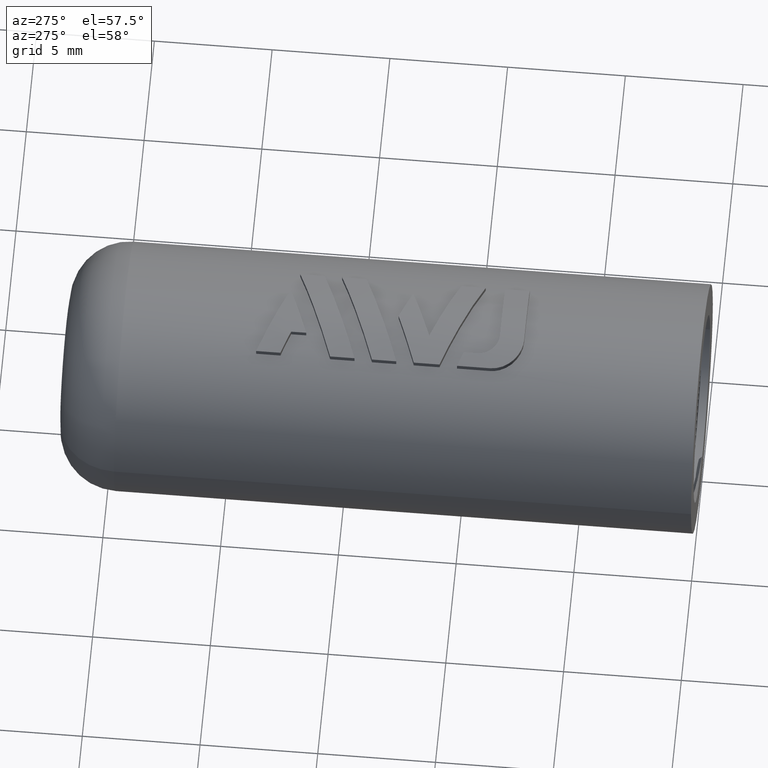
[diagram: clean part render]
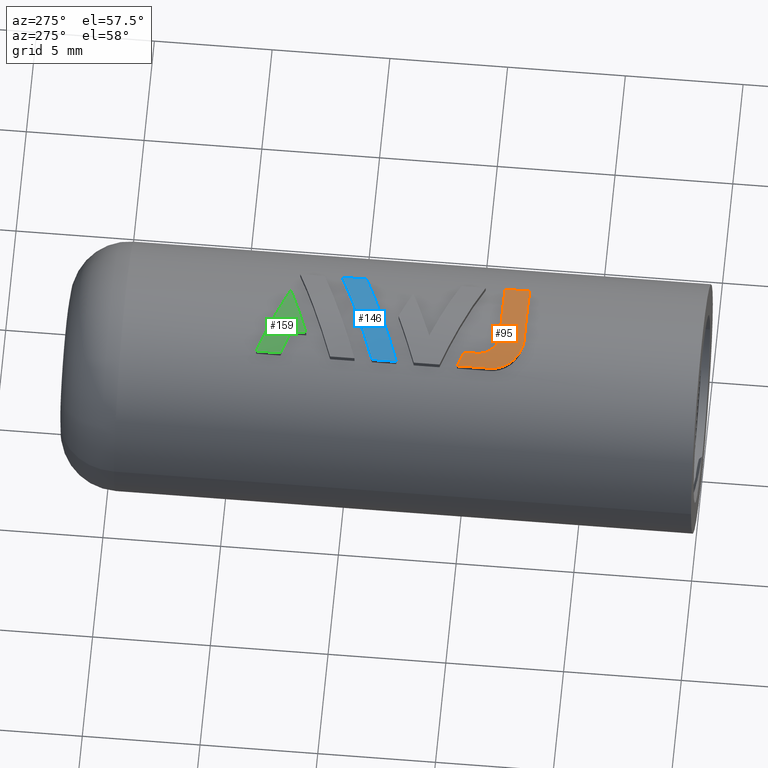
[diagram: same view with three faces highlighted in distinct colors, each labeled with its STEP entity id]
A machine part, auxiliary view with three faces highlighted in distinct colors.
Their STEP definitions:

[orange] entity #95 — the highlighted cylindrical surface (partial cylindrical patch) has radius 5.5 mm, axis along (-0, 1, 0).
#95=ADVANCED_FACE('',(#191),#192,.T.);
#191=FACE_OUTER_BOUND('',#2022,.T.);
#192=CYLINDRICAL_SURFACE('',#2023,5.5);
#2022=EDGE_LOOP('',(#2242,#2243,#2244,#2245,#2246,#2247,#2248,#2249,#2250,#2251,#2252,#2253,#2254,#2255,#2256,#2257,#2258,#2259,#2260,#2261,#2262,#2263,#2264,#2265,#2266,#2267,#2268,#2269,#2270,#2271,#2272,#2273,#2274,#2275,#2276,#2277,#2278,#2279,#2280,#2281));
#2023=AXIS2_PLACEMENT_3D('',#2282,#2283,#2284);
#2242=ORIENTED_EDGE('',*,*,#2877,.T.);
#2243=ORIENTED_EDGE('',*,*,#2878,.T.);
#2244=ORIENTED_EDGE('',*,*,#2879,.T.);
#2245=ORIENTED_EDGE('',*,*,#2880,.T.);
#2246=ORIENTED_EDGE('',*,*,#2881,.T.);
#2247=ORIENTED_EDGE('',*,*,#2882,.T.);
#2248=ORIENTED_EDGE('',*,*,#2883,.T.);
#2249=ORIENTED_EDGE('',*,*,#2884,.T.);
#2250=ORIENTED_EDGE('',*,*,#2885,.T.);
#2251=ORIENTED_EDGE('',*,*,#2886,.T.);
#2252=ORIENTED_EDGE('',*,*,#2887,.T.);
#2253=ORIENTED_EDGE('',*,*,#2888,.T.);
#2254=ORIENTED_EDGE('',*,*,#2889,.T.);
#2255=ORIENTED_EDGE('',*,*,#2890,.T.);
#2256=ORIENTED_EDGE('',*,*,#2891,.T.);
#2257=ORIENTED_EDGE('',*,*,#2892,.T.);
#2258=ORIENTED_EDGE('',*,*,#2893,.T.);
#2259=ORIENTED_EDGE('',*,*,#2894,.T.);
#2260=ORIENTED_EDGE('',*,*,#2895,.T.);
#2261=ORIENTED_EDGE('',*,*,#2896,.T.);
#2262=ORIENTED_EDGE('',*,*,#2897,.T.);
#2263=ORIENTED_EDGE('',*,*,#2898,.T.);
#2264=ORIENTED_EDGE('',*,*,#2899,.T.);
#2265=ORIENTED_EDGE('',*,*,#2900,.T.);
#2266=ORIENTED_EDGE('',*,*,#2901,.T.);
#2267=ORIENTED_EDGE('',*,*,#2902,.T.);
#2268=ORIENTED_EDGE('',*,*,#2903,.T.);
#2269=ORIENTED_EDGE('',*,*,#2904,.T.);
#2270=ORIENTED_EDGE('',*,*,#2905,.T.);
#2271=ORIENTED_EDGE('',*,*,#2906,.T.);
#2272=ORIENTED_EDGE('',*,*,#2907,.T.);
#2273=ORIENTED_EDGE('',*,*,#2908,.T.);
#2274=ORIENTED_EDGE('',*,*,#2909,.T.);
#2275=ORIENTED_EDGE('',*,*,#2910,.T.);
#2276=ORIENTED_EDGE('',*,*,#2911,.T.);
#2277=ORIENTED_EDGE('',*,*,#2912,.T.);
#2278=ORIENTED_EDGE('',*,*,#2913,.T.);
#2279=ORIENTED_EDGE('',*,*,#2914,.T.);
#2280=ORIENTED_EDGE('',*,*,#2915,.T.);
#2281=ORIENTED_EDGE('',*,*,#2916,.T.);
#2282=CARTESIAN_POINT('',(1.7347234759768E-15,23.5231745793484,-1.06221177613038E-31));
#2283=DIRECTION('',(-0.0,1.0,0.0));
#2284=DIRECTION('',(1.0,0.0,-6.12323399573677E-17));
#2877=EDGE_CURVE('',#3110,#3111,#3112,.T.);
#2878=EDGE_CURVE('',#3111,#3113,#3114,.T.);
#2879=EDGE_CURVE('',#3113,#3115,#3116,.T.);
#2880=EDGE_CURVE('',#3115,#3117,#3118,.T.);
#2881=EDGE_CURVE('',#3117,#3119,#3120,.T.);
#2882=EDGE_CURVE('',#3119,#3121,#3122,.T.);
#2883=EDGE_CURVE('',#3121,#3123,#3124,.T.);
#2884=EDGE_CURVE('',#3123,#3125,#3126,.T.);
#2885=EDGE_CURVE('',#3125,#3127,#3128,.T.);
#2886=EDGE_CURVE('',#3127,#3129,#3130,.T.);
#2887=EDGE_CURVE('',#3129,#3131,#3132,.T.);
#2888=EDGE_CURVE('',#3131,#3133,#3134,.T.);
#2889=EDGE_CURVE('',#3133,#3135,#3136,.T.);
#2890=EDGE_CURVE('',#3135,#3137,#3138,.T.);
#2891=EDGE_CURVE('',#3137,#3139,#3140,.T.);
#2892=EDGE_CURVE('',#3139,#3141,#3142,.T.);
#2893=EDGE_CURVE('',#3141,#3143,#3144,.T.);
#2894=EDGE_CURVE('',#3143,#3145,#3146,.T.);
#2895=EDGE_CURVE('',#3145,#3147,#3148,.T.);
#2896=EDGE_CURVE('',#3147,#3149,#3150,.F.);
#2897=EDGE_CURVE('',#3149,#3151,#3152,.T.);
#2898=EDGE_CURVE('',#3151,#3153,#3154,.T.);
#2899=EDGE_CURVE('',#3153,#3155,#3156,.T.);
#2900=EDGE_CURVE('',#3155,#3157,#3158,.T.);
#2901=EDGE_CURVE('',#3157,#3159,#3160,.F.);
#2902=EDGE_CURVE('',#3159,#3161,#3162,.T.);
#2903=EDGE_CURVE('',#3161,#3163,#3164,.T.);
#2904=EDGE_CURVE('',#3163,#3165,#3166,.T.);
#2905=EDGE_CURVE('',#3165,#3167,#3168,.T.);
#2906=EDGE_CURVE('',#3167,#3169,#3170,.T.);
#2907=EDGE_CURVE('',#3169,#3171,#3172,.T.);
#2908=EDGE_CURVE('',#3171,#3173,#3174,.T.);
#2909=EDGE_CURVE('',#3173,#3175,#3176,.T.);
#2910=EDGE_CURVE('',#3175,#3177,#3178,.T.);
#2911=EDGE_CURVE('',#3177,#3179,#3180,.T.);
#2912=EDGE_CURVE('',#3179,#3181,#3182,.T.);
#2913=EDGE_CURVE('',#3181,#3183,#3184,.T.);
#2914=EDGE_CURVE('',#3183,#3185,#3186,.T.);
#2915=EDGE_CURVE('',#3185,#3187,#3188,.T.);
#2916=EDGE_CURVE('',#3187,#3110,#3189,.T.);
#3110=VERTEX_POINT('',#4318);
#3111=VERTEX_POINT('',#4319);
#3112=ELLIPSE('',#4320,7.19115446070758,5.5);
#3113=VERTEX_POINT('',#4321);
#3114=ELLIPSE('',#4322,7.51049630201336,5.5);
#3115=VERTEX_POINT('',#4323);
#3116=ELLIPSE('',#4324,7.87524097586556,5.49999999999999);
#3117=VERTEX_POINT('',#4325);
#3118=ELLIPSE('',#4326,8.29590120246717,5.50000000000001);
#3119=VERTEX_POINT('',#4327);
#3120=ELLIPSE('',#4328,8.78584519329315,5.5);
#3121=VERTEX_POINT('',#4329);
#3122=ELLIPSE('',#4330,9.36479649305771,5.5);
#3123=VERTEX_POINT('',#4331);
#3124=ELLIPSE('',#4332,10.0594650290428,5.5);
#3125=VERTEX_POINT('',#4333);
#3126=ELLIPSE('',#4334,10.9033213169632,5.5);
#3127=VERTEX_POINT('',#4335);
#3128=ELLIPSE('',#4336,11.9207143944446,5.5);
#3129=VERTEX_POINT('',#4337);
#3130=ELLIPSE('',#4338,13.1666949154372,5.50000000000001);
#3131=VERTEX_POINT('',#4339);
#3132=ELLIPSE('',#4340,14.7336941101396,5.5);
#3133=VERTEX_POINT('',#4341);
#3134=ELLIPSE('',#4342,16.7706381363553,5.50000000000001);
#3135=VERTEX_POINT('',#4343);
#3136=ELLIPSE('',#4344,19.5385984133284,5.50000000000001);
#3137=VERTEX_POINT('',#4345);
#3138=ELLIPSE('',#4346,23.5295682769123,5.5);
#3139=VERTEX_POINT('',#4347);
#3140=ELLIPSE('',#4348,29.1727695141111,5.5);
#3141=VERTEX_POINT('',#4349);
#3142=ELLIPSE('',#4350,37.4272935568796,5.5);
#3143=VERTEX_POINT('',#4351);
#3144=ELLIPSE('',#4352,52.2311187882268,5.49999999999999);
#3145=VERTEX_POINT('',#4353);
#3146=ELLIPSE('',#4354,86.6979704067254,5.5);
#3147=VERTEX_POINT('',#4355);
#3148=ELLIPSE('',#4356,258.797847221049,5.5);
#3149=VERTEX_POINT('',#4357);
#3150=LINE('',#4358,#4359);
#3151=VERTEX_POINT('',#4360);
#3152=ELLIPSE('',#4361,5.93193926590106,5.5);
#3153=VERTEX_POINT('',#4362);
#3154=B_SPLINE_CURVE_WITH_KNOTS('',3,(#4363,#4364,#4365,#4366),.UNSPECIFIED.,.F.,.F.,(4,4),(0.00567640624225707,0.00707972990579237),.UNSPECIFIED.);
#3155=VERTEX_POINT('',#4367);
#3156=B_SPLINE_CURVE_WITH_KNOTS('',3,(#4368,#4369,#4370,#4371,#4372,#4373,#4374,#4375,#4376,#4377,#4378,#4379),.UNSPECIFIED.,.F.,.F.,(4,2,2,2,2,4),(0.0,0.000264322943552854,0.000528645887105708,0.00105729177421142,0.00158593766131713,0.00211458354842284),.UNSPECIFIED.);
#3157=VERTEX_POINT('',#4380);
#3158=CIRCLE('',#4381,5.5);
#3159=VERTEX_POINT('',#4382);
#3160=LINE('',#4383,#4384);
#3161=VERTEX_POINT('',#4385);
#3162=CIRCLE('',#4386,5.5);
#3163=VERTEX_POINT('',#4387);
#3164=ELLIPSE('',#4388,5.50167455048243,5.5);
#3165=VERTEX_POINT('',#4389);
#3166=ELLIPSE('',#4390,5.51488255044797,5.5);
#3167=VERTEX_POINT('',#4391);
#3168=ELLIPSE('',#4392,5.54097233893021,5.5);
#3169=VERTEX_POINT('',#4393);
#3170=ELLIPSE('',#4394,5.58001678511402,5.5);
#3171=VERTEX_POINT('',#4395);
#3172=ELLIPSE('',#4396,5.63257191887835,5.5);
#3173=VERTEX_POINT('',#4397);
#3174=ELLIPSE('',#4398,5.69967575837449,5.5);
#3175=VERTEX_POINT('',#4399);
#3176=ELLIPSE('',#4400,5.78280067695114,5.50000000000001);
#3177=VERTEX_POINT('',#4401);
#3178=ELLIPSE('',#4402,5.88348415254288,5.5);
#3179=VERTEX_POINT('',#4403);
#3180=ELLIPSE('',#4404,6.00087318082815,5.5);
#3181=VERTEX_POINT('',#4405);
#3182=ELLIPSE('',#4406,6.1361966087212,5.5);
#3183=VERTEX_POINT('',#4407);
#3184=ELLIPSE('',#4408,6.2914357675483,5.5);
#3185=VERTEX_POINT('',#4409);
#3186=ELLIPSE('',#4410,6.46979696450778,5.5);
#3187=VERTEX_POINT('',#4411);
#3188=ELLIPSE('',#4412,6.67532786888118,5.5);
#3189=ELLIPSE('',#4413,6.91301455758095,5.5);
#4318=CARTESIAN_POINT('',(-1.08592408240199,8.72700103611199,5.39173152959784));
#4319=CARTESIAN_POINT('',(-1.11899010313799,8.75485336064598,5.38496621615023));
#4320=AXIS2_PLACEMENT_3D('',#4779,#4780,#4781);
#4321=CARTESIAN_POINT('',(-1.150754256018,8.78439082151,5.378267810574));
#4322=AXIS2_PLACEMENT_3D('',#4782,#4783,#4784);
#4323=CARTESIAN_POINT('',(-1.18111694459399,8.81550670822399,5.37168155824533));
#4324=AXIS2_PLACEMENT_3D('',#4785,#4786,#4787);
#4325=CARTESIAN_POINT('',(-1.20997501540199,8.84809342105399,5.36525492983352));
#4326=AXIS2_PLACEMENT_3D('',#4788,#4789,#4790);
#4327=CARTESIAN_POINT('',(-1.23722798273999,8.88204247101199,5.35903600647776));
#4328=AXIS2_PLACEMENT_3D('',#4791,#4792,#4793);
#4329=CARTESIAN_POINT('',(-1.26277447165198,8.91724803687198,5.353073942488));
#4330=AXIS2_PLACEMENT_3D('',#4794,#4795,#4796);
#4331=CARTESIAN_POINT('',(-1.28651310718199,8.95360162964599,5.34741844491797));
#4332=AXIS2_PLACEMENT_3D('',#4797,#4798,#4799);
#4333=CARTESIAN_POINT('',(-1.30832828631,8.990943183614,5.34212290154777));
#4334=AXIS2_PLACEMENT_3D('',#4800,#4801,#4802);
#4335=CARTESIAN_POINT('',(-1.32836851445399,9.02947900570399,5.33717501022847));
#4336=AXIS2_PLACEMENT_3D('',#4803,#4804,#4805);
#4337=CARTESIAN_POINT('',(-1.34656709756399,9.06906236900599,5.3326125915688));
#4338=AXIS2_PLACEMENT_3D('',#4806,#4807,#4808);
#4339=CARTESIAN_POINT('',(-1.36285823084399,9.10954921437199,5.32847233666656));
#4340=AXIS2_PLACEMENT_3D('',#4809,#4810,#4811);
#4341=CARTESIAN_POINT('',(-1.37717610949799,9.15079281489197,5.32478975767382));
#4342=AXIS2_PLACEMENT_3D('',#4812,#4813,#4814);
#4343=CARTESIAN_POINT('',(-1.38945492872999,9.19264911141799,5.32159891395696));
#4344=AXIS2_PLACEMENT_3D('',#4815,#4816,#4817);
#4345=CARTESIAN_POINT('',(-1.399629772998,9.23497226629399,5.31893189451957));
#4346=AXIS2_PLACEMENT_3D('',#4818,#4819,#4820);
#4347=CARTESIAN_POINT('',(-1.40668778199599,9.27173758366997,5.31706963317043));
#4348=AXIS2_PLACEMENT_3D('',#4821,#4822,#4823);
#4349=CARTESIAN_POINT('',(-1.41220026754199,9.30884259607399,5.31560818762579));
#4350=AXIS2_PLACEMENT_3D('',#4824,#4825,#4826);
#4351=CARTESIAN_POINT('',(-1.41615389082599,9.34617970377205,5.3145562521718));
#4352=AXIS2_PLACEMENT_3D('',#4827,#4828,#4829);
#4353=CARTESIAN_POINT('',(-1.41853531303798,9.38364308553787,5.31392111022211));
#4354=AXIS2_PLACEMENT_3D('',#4830,#4831,#4832);
#4355=CARTESIAN_POINT('',(-1.41933208462199,9.42112603089206,5.31370835044252));
#4356=AXIS2_PLACEMENT_3D('',#4833,#4834,#4835);
#4357=CARTESIAN_POINT('',(-1.41933208462199,9.98911301353399,5.31370835044252));
#4358=CARTESIAN_POINT('',(-1.41933208462199,23.5231745793484,5.31370835044252));
#4359=VECTOR('',#4836,1000.0);
#4360=CARTESIAN_POINT('',(-2.0008215,10.224049474064,5.12315462631548));
#4361=AXIS2_PLACEMENT_3D('',#4837,#4838,#4839);
#4362=CARTESIAN_POINT('',(-2.0008214918406,8.82072581052868,5.12315462950209));
#4363=CARTESIAN_POINT('',(-2.0008215,10.224049474064,5.12315462631548));
#4364=CARTESIAN_POINT('',(-2.0008214972802,9.75627491955222,5.12315462737769));
#4365=CARTESIAN_POINT('',(-2.0008214945604,9.28850036504045,5.12315462843989));
#4366=CARTESIAN_POINT('',(-2.00082149184061,8.82072581052868,5.12315462950209));
#4367=CARTESIAN_POINT('',(-0.6669405,7.48684473994999,5.45941300594301));
#4368=CARTESIAN_POINT('',(-2.0008214918406,8.82072581052868,5.12315462950209));
#4369=CARTESIAN_POINT('',(-2.00081160307552,8.73129299715089,5.12315849150805));
#4370=CARTESIAN_POINT('',(-1.99177395962376,8.64355009644077,5.12671268375382));
#4371=CARTESIAN_POINT('',(-1.95702906720631,8.47116597637719,5.1400762327136));
#4372=CARTESIAN_POINT('',(-1.93085321933508,8.38560434887119,5.15005921695318));
#4373=CARTESIAN_POINT('',(-1.82916419572794,8.14319940970248,5.18742467087774));
#4374=CARTESIAN_POINT('',(-1.72942025281554,7.99616373276001,5.22258912847413));
#4375=CARTESIAN_POINT('',(-1.48498596960788,7.75321831978701,5.29727744089098));
#4376=CARTESIAN_POINT('',(-1.33791534668604,7.65509622973159,5.33728648761208));
#4377=CARTESIAN_POINT('',(-1.01903447232677,7.52265867491175,5.40723711981953));
#4378=CARTESIAN_POINT('',(-0.844271619590071,7.48686435827438,5.43774963198025));
#4379=CARTESIAN_POINT('',(-0.6669405,7.48684473994999,5.45941300594302));
#4380=CARTESIAN_POINT('',(1.99789407583201,7.48684473994999,5.1242969529249));
#4381=AXIS2_PLACEMENT_3D('',#4840,#4841,#4842);
#4382=CARTESIAN_POINT('',(1.997894075832,8.53187203089199,5.1242969529249));
#4383=CARTESIAN_POINT('',(1.99789407583201,23.5231745793484,5.1242969529249));
#4384=VECTOR('',#4843,1000.0);
#4385=CARTESIAN_POINT('',(-0.53007808462199,8.53187203089199,5.47439651689604));
#4386=AXIS2_PLACEMENT_3D('',#4844,#4845,#4846);
#4387=CARTESIAN_POINT('',(-0.573066401489996,8.53293291091399,5.47006351877959));
#4388=AXIS2_PLACEMENT_3D('',#4847,#4848,#4849);
#4389=CARTESIAN_POINT('',(-0.616034265515994,8.53609598739199,5.46539127453014));
#4390=AXIS2_PLACEMENT_3D('',#4850,#4851,#4852);
#4391=CARTESIAN_POINT('',(-0.658835839043985,8.54133013643599,5.46039699446764));
#4392=AXIS2_PLACEMENT_3D('',#4853,#4854,#4855);
#4393=CARTESIAN_POINT('',(-0.701325284417986,8.54860423415599,5.45510245966435));
#4394=AXIS2_PLACEMENT_3D('',#4856,#4857,#4858);
#4395=CARTESIAN_POINT('',(-0.743355874727997,8.557888045916,5.44953411251892));
#4396=AXIS2_PLACEMENT_3D('',#4859,#4860,#4861);
#4397=CARTESIAN_POINT('',(-0.78478088306398,8.56915133707999,5.44372289573756));
#4398=AXIS2_PLACEMENT_3D('',#4862,#4863,#4864);
#4399=CARTESIAN_POINT('',(-0.82545447176999,8.58236120524998,5.43770401134844));
#4400=AXIS2_PLACEMENT_3D('',#4865,#4866,#4867);
#4401=CARTESIAN_POINT('',(-0.865368637559993,8.597523875204,5.43149492507611));
#4402=AXIS2_PLACEMENT_3D('',#4868,#4869,#4870);
#4403=CARTESIAN_POINT('',(-0.904583849705984,8.61463667917999,5.42510166345766));
#4404=AXIS2_PLACEMENT_3D('',#4871,#4872,#4873);
#4405=CARTESIAN_POINT('',(-0.942978280409987,8.63363025536598,5.41855995285418));
#4406=AXIS2_PLACEMENT_3D('',#4874,#4875,#4876);
#4407=CARTESIAN_POINT('',(-0.980430991127987,8.65443257418799,5.41190863481968));
#4408=AXIS2_PLACEMENT_3D('',#4877,#4878,#4879);
#4409=CARTESIAN_POINT('',(-1.01682104331598,8.67697516308798,5.40518963273906));
#4410=AXIS2_PLACEMENT_3D('',#4880,#4881,#4882);
#4411=CARTESIAN_POINT('',(-1.05202571992199,8.70118866025399,5.39844809965073));
#4412=AXIS2_PLACEMENT_3D('',#4883,#4884,#4885);
#4413=AXIS2_PLACEMENT_3D('',#4886,#4887,#4888);
#4779=CARTESIAN_POINT('',(1.7347234759768E-15,7.81230040721499,-1.06221177613038E-31));
#4780=DIRECTION('',(-0.644233917102622,-0.764828516763472,1.84889274661174E-32));
#4781=DIRECTION('',(0.764828516763472,-0.644233917102622,1.23259516440783E-32));
#4782=CARTESIAN_POINT('',(1.7347234759768E-15,7.7143053408859,-1.06221177613038E-31));
#4783=DIRECTION('',(-0.680973065297779,-0.732308462561336,3.69778549322349E-32));
#4784=DIRECTION('',(0.732308462561336,-0.680973065297779,1.84889274661174E-32));
#4785=CARTESIAN_POINT('',(1.7347234759768E-15,7.60509014870298,-1.06221177613038E-31));
#4786=DIRECTION('',(-0.71571611242667,-0.698391327561313,-1.84889274661175E-32));
#4787=DIRECTION('',(0.698391327561313,-0.71571611242667,1.23259516440783E-32));
#4788=CARTESIAN_POINT('',(1.7347234759768E-15,7.48178211699245,-1.06221177613038E-31));
#4789=DIRECTION('',(-0.748638877900146,-0.662978001517705,6.16297582203916E-32));
#4790=DIRECTION('',(0.662978001517705,-0.748638877900146,-3.08148791101958E-32));
#4791=CARTESIAN_POINT('',(1.7347234759768E-15,7.34082627702648,-1.06221177613038E-31));
#4792=DIRECTION('',(-0.779817491661596,-0.626006932628239,-3.08148791101958E-32));
#4793=DIRECTION('',(0.626006932628239,-0.779817491661596,1.23259516440783E-32));
#4794=CARTESIAN_POINT('',(1.7347234759768E-15,7.17702103420189,-1.06221177613038E-31));
#4795=DIRECTION('',(-0.809365065349925,-0.587305875154601,6.16297582203916E-33));
#4796=DIRECTION('',(0.587305875154601,-0.809365065349925,4.31408307542741E-32));
#4797=CARTESIAN_POINT('',(1.7347234759768E-15,6.98342210783664,-1.06221177613038E-31));
#4798=DIRECTION('',(-0.837296719685789,-0.546748756929009,1.23259516440783E-32));
#4799=DIRECTION('',(0.546748756929009,-0.837296719685789,-6.16297582203916E-33));
#4800=CARTESIAN_POINT('',(1.7347234759768E-15,6.75144695832792,-1.06221177613038E-31));
#4801=DIRECTION('',(-0.863450573828862,-0.504433451066252,-3.08148791101958E-32));
#4802=DIRECTION('',(0.504433451066252,-0.863450573828862,-3.08148791101958E-32));
#4803=CARTESIAN_POINT('',(1.7347234759768E-15,6.47512820814103,-1.06221177613038E-31));
#4804=DIRECTION('',(-0.887201716676643,-0.461381744248748,-6.16297582203916E-33));
#4805=DIRECTION('',(0.461381744248748,-0.887201716676643,-1.84889274661175E-32));
#4806=CARTESIAN_POINT('',(1.7347234759768E-15,6.14017200917855,-1.06221177613038E-31));
#4807=DIRECTION('',(-0.908575523171429,-0.41772062277767,2.46519032881566E-32));
#4808=DIRECTION('',(0.41772062277767,-0.908575523171429,-6.16297582203916E-33));
#4809=CARTESIAN_POINT('',(1.7347234759768E-15,5.72256382179055,-1.06221177613038E-31));
#4810=DIRECTION('',(-0.927713085904695,-0.3732940265276,2.46519032881566E-32));
#4811=DIRECTION('',(0.3732940265276,-0.927713085904695,-2.77333911991762E-32));
#4812=CARTESIAN_POINT('',(1.7347234759768E-15,5.18374555332453,-1.06221177613038E-31));
#4813=DIRECTION('',(-0.944693648842253,-0.32795412764152,4.93038065763132E-32));
#4814=DIRECTION('',(0.32795412764152,-0.944693648842253,2.1570415377137E-32));
#4815=CARTESIAN_POINT('',(1.7347234759768E-15,4.45624600884063,-1.06221177613038E-31));
#4816=DIRECTION('',(-0.959562961313936,-0.281494091011571,7.39557098644699E-32));
#4817=DIRECTION('',(0.281494091011571,-0.959562961313936,-6.16297582203915E-33));
#4818=CARTESIAN_POINT('',(1.7347234759768E-15,3.4130897793126,-1.06221177613038E-31));
#4819=DIRECTION('',(-0.972297107053994,-0.233748445159392,-2.46519032881566E-32));
#4820=DIRECTION('',(0.233748445159392,-0.972297107053994,-1.54074395550979E-32));
#4821=CARTESIAN_POINT('',(1.7347234759768E-15,1.9442713295609,-1.06221177613038E-31));
#4822=DIRECTION('',(-0.982067050918069,-0.188531980048709,1.23259516440783E-32));
#4823=DIRECTION('',(0.188531980048709,-0.982067050918069,3.08148791101958E-33));
#4824=CARTESIAN_POINT('',(1.7347234759768E-15,-0.196798372385399,-1.06221177613038E-31));
#4825=DIRECTION('',(-0.989143686495174,-0.146951582049112,1.23259516440783E-32));
#4826=DIRECTION('',(0.146951582049112,-0.989143686495174,-1.54074395550979E-33));
#4827=CARTESIAN_POINT('',(1.7347234759768E-15,-4.02765147351932,-1.06221177613038E-31));
#4828=DIRECTION('',(-0.994440372875624,-0.1053012098458,-2.46519032881566E-32));
#4829=DIRECTION('',(0.1053012098458,-0.994440372875624,8.47409175530384E-33));
#4830=CARTESIAN_POINT('',(1.7347234759768E-15,-12.9320679685429,-1.06221177613038E-31));
#4831=DIRECTION('',(-0.997985741835146,-0.0634386246205984,1.23259516440783E-32));
#4832=DIRECTION('',(0.0634386246205984,-0.997985741835146,-4.62223186652937E-33));
#4833=CARTESIAN_POINT('',(1.7347234759768E-15,-57.3492609098432,-1.06221177613038E-31));
#4834=DIRECTION('',(-0.999774148431832,-0.0212521087754731,-9.61407134256663E-52));
#4835=DIRECTION('',(0.0212521087754731,-0.999774148431832,-3.85185988877447E-34));
#4836=DIRECTION('',(0.0,-1.0,0.0));
#4837=CARTESIAN_POINT('',(1.7347234759768E-15,9.41566688113795,-1.06221177613038E-31));
#4838=DIRECTION('',(-0.374605889774888,-0.927184138855904,-9.24446373305873E-33));
#4839=DIRECTION('',(0.927184138855904,-0.374605889774888,9.86076131526265E-32));
#4840=CARTESIAN_POINT('',(1.7347234759768E-15,7.48684473994999,-1.06221177613038E-31));
#4841=DIRECTION('',(3.77373430684139E-49,1.0,6.16297582203916E-33));
#4842=DIRECTION('',(-6.12323399573677E-17,6.16297582203916E-33,-1.0));
#4843=DIRECTION('',(0.0,-1.0,0.0));
#4844=CARTESIAN_POINT('',(1.7347234759768E-15,8.53187203089199,-1.06221177613038E-31));
#4845=DIRECTION('',(-3.77373430684139E-49,-1.0,-6.16297582203916E-33));
#4846=DIRECTION('',(6.12323399573677E-17,-6.16297582203916E-33,1.0));
#4847=CARTESIAN_POINT('',(1.7347234759768E-15,8.51879058711738,-1.06221177613038E-31));
#4848=DIRECTION('',(-0.0246708221697221,-0.999695628945866,1.54074395550979E-33));
#4849=DIRECTION('',(0.999695628945866,-0.0246708221697221,-6.16297582203916E-32));
#4850=CARTESIAN_POINT('',(1.7347234759768E-15,8.49074666554258,-1.06221177613038E-31));
#4851=DIRECTION('',(-0.0734162756428558,-0.99730138397113,3.08148791101958E-33));
#4852=DIRECTION('',(0.99730138397113,-0.0734162756428558,-4.93038065763132E-32));
#4853=CARTESIAN_POINT('',(1.7347234759768E-15,8.46076195417447,-1.06221177613038E-31));
#4854=DIRECTION('',(-0.121384450630644,-0.992605568765911,-1.4369180363553E-48));
#4855=DIRECTION('',(0.99260556876591,-0.121384450630644,-4.93038065763132E-32));
#4856=CARTESIAN_POINT('',(1.7347234759768E-15,8.42853891893582,-1.06221177613038E-31));
#4857=DIRECTION('',(-0.168742800716709,-0.98566011748791,9.24446373305873E-33));
#4858=DIRECTION('',(0.98566011748791,-0.168742800716709,3.6977854932235E-32));
#4859=CARTESIAN_POINT('',(1.7347234759768E-15,8.39369392061884,-1.06221177613038E-31));
#4860=DIRECTION('',(-0.215683429399358,-0.976463342006515,-3.08148791101958E-33));
#4861=DIRECTION('',(0.976463342006515,-0.215683429399358,1.33250703304094E-48));
#4862=CARTESIAN_POINT('',(1.7347234759768E-15,8.3557726090857,-1.06221177613038E-31));
#4863=DIRECTION('',(-0.262370646687066,-0.964967172372724,-6.16297582203916E-33));
#4864=DIRECTION('',(0.964967172372724,-0.262370646687066,6.16297582203916E-32));
#4865=CARTESIAN_POINT('',(1.7347234759768E-15,8.31427213075913,-1.06221177613038E-31));
#4866=DIRECTION('',(-0.308894700261037,-0.951096243369011,6.16297582203916E-33));
#4867=DIRECTION('',(0.951096243369011,-0.308894700261037,2.46519032881566E-32));
#4868=CARTESIAN_POINT('',(1.7347234759768E-15,8.26878597525888,-1.06221177613038E-31));
#4869=DIRECTION('',(-0.355121303699923,-0.93482022852443,-6.16297582203916E-33));
#4870=DIRECTION('',(0.93482022852443,-0.355121303699923,-2.46519032881566E-32));
#4871=CARTESIAN_POINT('',(1.7347234759768E-15,8.21989277106991,-1.06221177613038E-31));
#4872=DIRECTION('',(-0.399958423246414,-0.916533283451421,1.23259516440783E-32));
#4873=DIRECTION('',(0.916533283451421,-0.399958423246414,-3.6977854932235E-32));
#4874=CARTESIAN_POINT('',(1.7347234759768E-15,8.16714255175148,-1.06221177613038E-31));
#4875=DIRECTION('',(-0.443406376070301,-0.896320693535636,3.08148791101958E-33));
#4876=DIRECTION('',(0.896320693535636,-0.443406376070301,-1.84889274661175E-32));
#4877=CARTESIAN_POINT('',(1.7347234759768E-15,8.10987284354547,-1.06221177613038E-31));
#4878=DIRECTION('',(-0.485558336109806,-0.874204268025658,3.08148791101958E-32));
#4879=DIRECTION('',(0.874204268025658,-0.485558336109806,-1.23259516440783E-32));
#4880=CARTESIAN_POINT('',(1.7347234759768E-15,8.04708382229197,-1.06221177613038E-31));
#4881=DIRECTION('',(-0.526614909044729,-0.850103956920453,-6.16297582203916E-33));
#4882=DIRECTION('',(0.850103956920453,-0.526614909044729,-2.46519032881566E-32));
#4883=CARTESIAN_POINT('',(1.7347234759768E-15,7.97761371954431,-1.06221177613038E-31));
#4884=DIRECTION('',(-0.566692216965182,-0.82392956691157,-1.84889274661174E-32));
#4885=DIRECTION('',(0.82392956691157,-0.566692216965182,3.6977854932235E-32));
#4886=CARTESIAN_POINT('',(1.7347234759768E-15,7.90010915940964,-1.06221177613038E-31));
#4887=DIRECTION('',(-0.605821216929017,-0.795600812668416,-4.31408307542741E-32));
#4888=DIRECTION('',(0.795600812668416,-0.605821216929017,6.16297582203916E-32));

[blue] entity #146 — the highlighted cylindrical surface (partial cylindrical patch) has radius 5.5 mm, axis along (-0, 1, 0).
#146=ADVANCED_FACE('',(#298),#299,.T.);
#298=FACE_OUTER_BOUND('',#2129,.T.);
#299=CYLINDRICAL_SURFACE('',#2130,5.5);
#2129=EDGE_LOOP('',(#2698,#2699,#2700,#2701));
#2130=AXIS2_PLACEMENT_3D('',#2702,#2703,#2704);
#2698=ORIENTED_EDGE('',*,*,#3038,.F.);
#2699=ORIENTED_EDGE('',*,*,#3037,.F.);
#2700=ORIENTED_EDGE('',*,*,#3039,.F.);
#2701=ORIENTED_EDGE('',*,*,#3034,.F.);
#2702=CARTESIAN_POINT('',(1.7347234759768E-15,28.7838316149234,-1.06221177613038E-31));
#2703=DIRECTION('',(-0.0,1.0,0.0));
#2704=DIRECTION('',(1.0,0.0,-6.12323399573677E-17));
#3034=EDGE_CURVE('',#3374,#3372,#3376,.T.);
#3037=EDGE_CURVE('',#3379,#3377,#3381,.F.);
#3038=EDGE_CURVE('',#3377,#3374,#3382,.T.);
#3039=EDGE_CURVE('',#3372,#3379,#3383,.T.);
#3372=VERTEX_POINT('',#4669);
#3374=VERTEX_POINT('',#4672);
#3376=LINE('',#4675,#4676);
#3377=VERTEX_POINT('',#4677);
#3379=VERTEX_POINT('',#4680);
#3381=LINE('',#4683,#4684);
#3382=ELLIPSE('',#4685,5.93202999466703,5.5);
#3383=ELLIPSE('',#4686,5.9320304528969,5.5);
#4669=CARTESIAN_POINT('',(1.99789407583201,14.419098105032,5.1242969529249));
#4672=CARTESIAN_POINT('',(1.99789407583201,15.452392578698,5.1242969529249));
#4675=CARTESIAN_POINT('',(1.99789407583201,28.7838316149234,5.1242969529249));
#4676=VECTOR('',#5112,1000.0);
#4677=CARTESIAN_POINT('',(-2.0008215,13.83663406727,5.12315462631548));
#4680=CARTESIAN_POINT('',(-2.0008215,12.80333870435,5.12315462631548));
#4683=CARTESIAN_POINT('',(-2.0008215,28.7838316149234,5.12315462631548));
#4684=VECTOR('',#5115,1000.0);
#4685=AXIS2_PLACEMENT_3D('',#5116,#5117,#5118);
#4686=AXIS2_PLACEMENT_3D('',#5119,#5120,#5121);
#5112=DIRECTION('',(0.0,-1.0,0.0));
#5115=DIRECTION('',(0.0,-1.0,0.0));
#5116=CARTESIAN_POINT('',(1.7347234759768E-15,14.6451047642138,-1.06221177613038E-31));
#5117=DIRECTION('',(-0.374640987210496,0.927169957829709,2.46519032881566E-32));
#5118=DIRECTION('',(-0.927169957829709,-0.374640987210496,8.62816615085482E-32));
#5119=CARTESIAN_POINT('',(1.7347234759768E-15,13.6118098462464,-1.06221177613038E-31));
#5120=DIRECTION('',(0.374641164459304,-0.927169886208874,-4.00593428432545E-32));
#5121=DIRECTION('',(-0.927169886208874,-0.374641164459304,7.39557098644699E-32));

[green] entity #159 — the highlighted cylindrical surface (partial cylindrical patch) has radius 5.5 mm, axis along (-0, 1, 0).
#159=ADVANCED_FACE('',(#324),#325,.T.);
#324=FACE_OUTER_BOUND('',#2155,.T.);
#325=CYLINDRICAL_SURFACE('',#2156,5.5);
#2155=EDGE_LOOP('',(#2789,#2790,#2791,#2792,#2793));
#2156=AXIS2_PLACEMENT_3D('',#2794,#2795,#2796);
#2789=ORIENTED_EDGE('',*,*,#3052,.T.);
#2790=ORIENTED_EDGE('',*,*,#3055,.T.);
#2791=ORIENTED_EDGE('',*,*,#3056,.T.);
#2792=ORIENTED_EDGE('',*,*,#3049,.T.);
#2793=ORIENTED_EDGE('',*,*,#3057,.T.);
#2794=CARTESIAN_POINT('',(1.7347234759768E-15,32.1390336526537,-1.06221177613038E-31));
#2795=DIRECTION('',(-0.0,1.0,0.0));
#2796=DIRECTION('',(1.0,0.0,-6.12323399573677E-17));
#3049=EDGE_CURVE('',#3398,#3396,#3399,.T.);
#3052=EDGE_CURVE('',#3403,#3401,#3404,.T.);
#3055=EDGE_CURVE('',#3401,#3406,#3408,.T.);
#3056=EDGE_CURVE('',#3406,#3398,#3409,.T.);
#3057=EDGE_CURVE('',#3396,#3403,#3410,.T.);
#3396=VERTEX_POINT('',#4705);
#3398=VERTEX_POINT('',#4708);
#3399=LINE('',#4709,#4710);
#3401=VERTEX_POINT('',#4713);
#3403=VERTEX_POINT('',#4716);
#3404=LINE('',#4717,#4718);
#3406=VERTEX_POINT('',#4721);
#3408=ELLIPSE('',#4724,5.93155702373943,5.5);
#3409=ELLIPSE('',#4725,5.93183373682054,5.5);
#3410=ELLIPSE('',#4726,5.93254691714324,5.5);
#4705=CARTESIAN_POINT('',(-2.00082149999999,17.723112449492,5.12315462631549));
#4708=CARTESIAN_POINT('',(-2.0008215,18.75610724456,5.12315462631548));
#4709=CARTESIAN_POINT('',(-2.0008215,32.1390336526537,5.12315462631548));
#4710=VECTOR('',#5135,1000.0);
#4713=CARTESIAN_POINT('',(-1.07727075172799,16.707141533,5.39346713417922));
#4716=CARTESIAN_POINT('',(-1.077270751728,17.349702245336,5.39346713417922));
#4717=CARTESIAN_POINT('',(-1.07727075172799,32.1390336526537,5.39346713417922));
#4718=VECTOR('',#5138,1000.0);
#4721=CARTESIAN_POINT('',(0.997309921302005,17.544939739544,5.40882361709758));
#4724=AXIS2_PLACEMENT_3D('',#5141,#5142,#5143);
#4725=AXIS2_PLACEMENT_3D('',#5144,#5145,#5146);
#4726=AXIS2_PLACEMENT_3D('',#5147,#5148,#5149);
#5135=DIRECTION('',(0.0,-1.0,0.0));
#5138=DIRECTION('',(0.0,-1.0,0.0));
#5141=CARTESIAN_POINT('',(1.7347234759768E-15,17.1421863184322,-1.06221177613038E-31));
#5142=DIRECTION('',(-0.37445796973655,0.92724388857559,-9.24446373305873E-33));
#5143=DIRECTION('',(-0.92724388857559,-0.37445796973655,-2.46519032881566E-32));
#5144=CARTESIAN_POINT('',(1.7347234759768E-15,17.9478271381846,-1.06221177613038E-31));
#5145=DIRECTION('',(-0.374565060835223,-0.927200633736575,2.46519032881566E-32));
#5146=DIRECTION('',(0.927200633736575,-0.374565060835223,0.0));
#5147=CARTESIAN_POINT('',(1.7347234759768E-15,16.914139941817,-1.06221177613038E-31));
#5148=DIRECTION('',(0.374840859640753,0.927089170438196,3.08148791101958E-33));
#5149=DIRECTION('',(0.927089170438195,-0.374840859640753,1.23259516440783E-32));